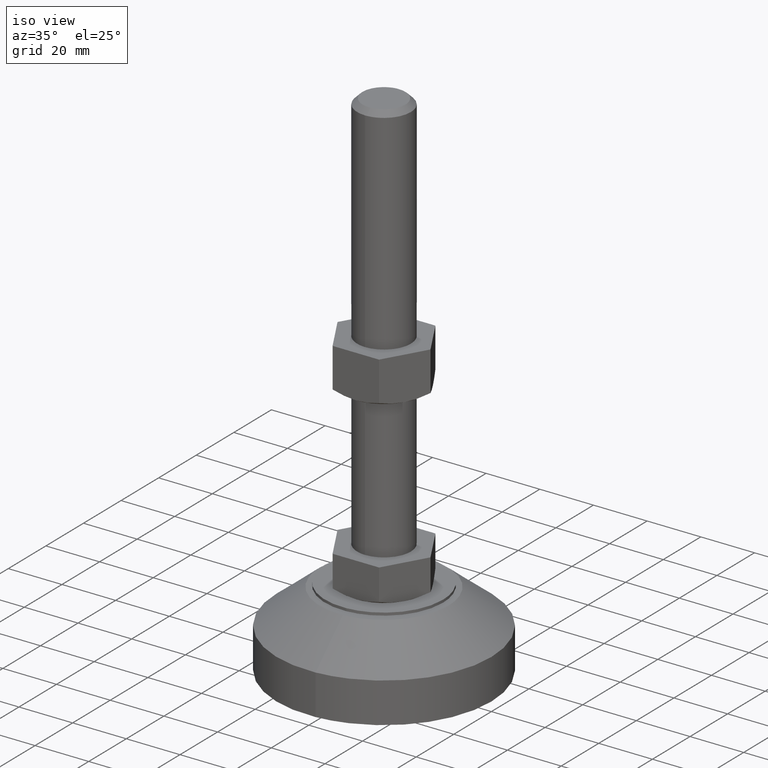
[diagram: clean part render]
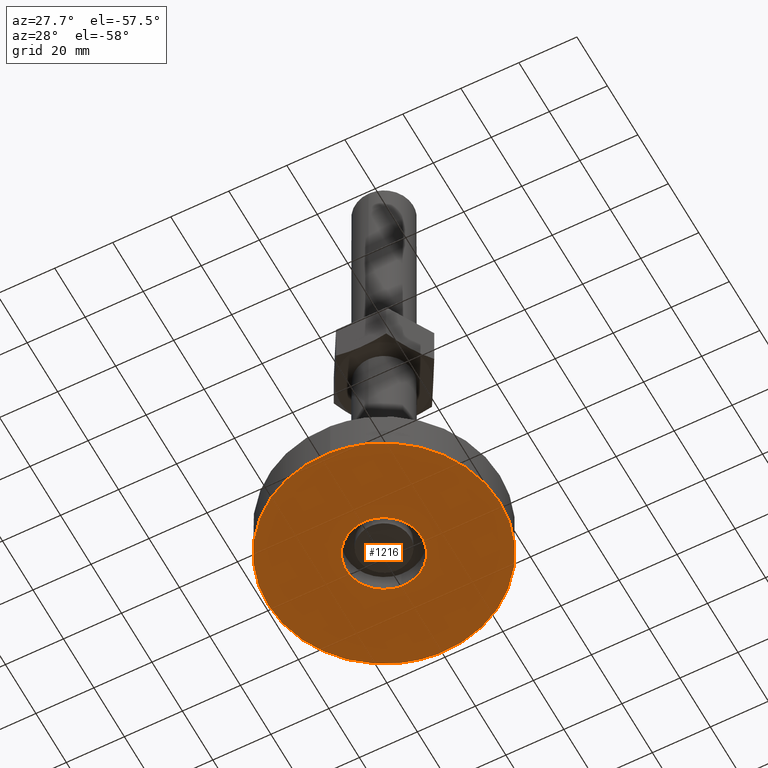
[diagram: tour spotlight — one face highlighted and labeled with its STEP entity id]
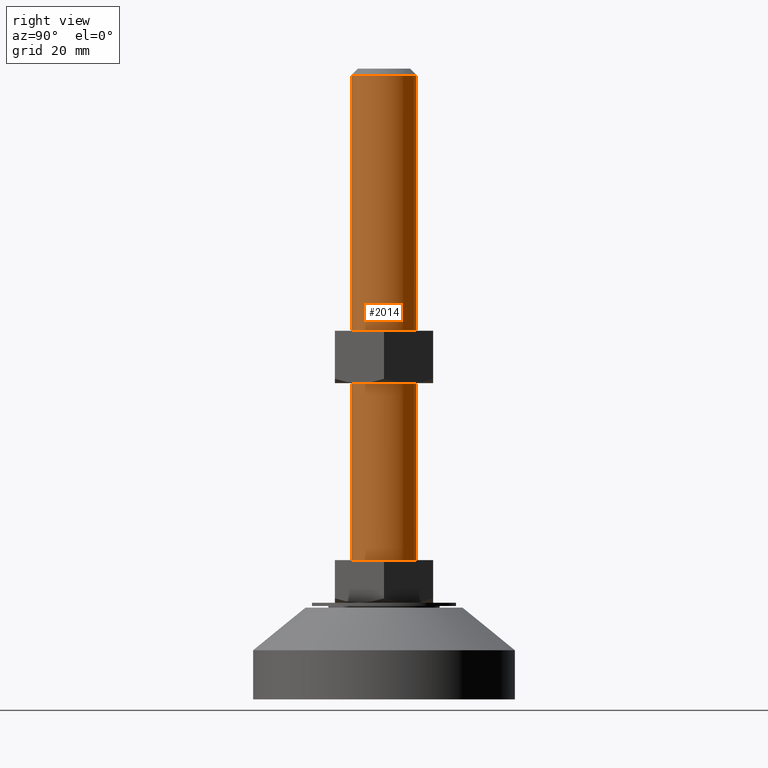
[diagram: tour spotlight — one face highlighted and labeled with its STEP entity id]
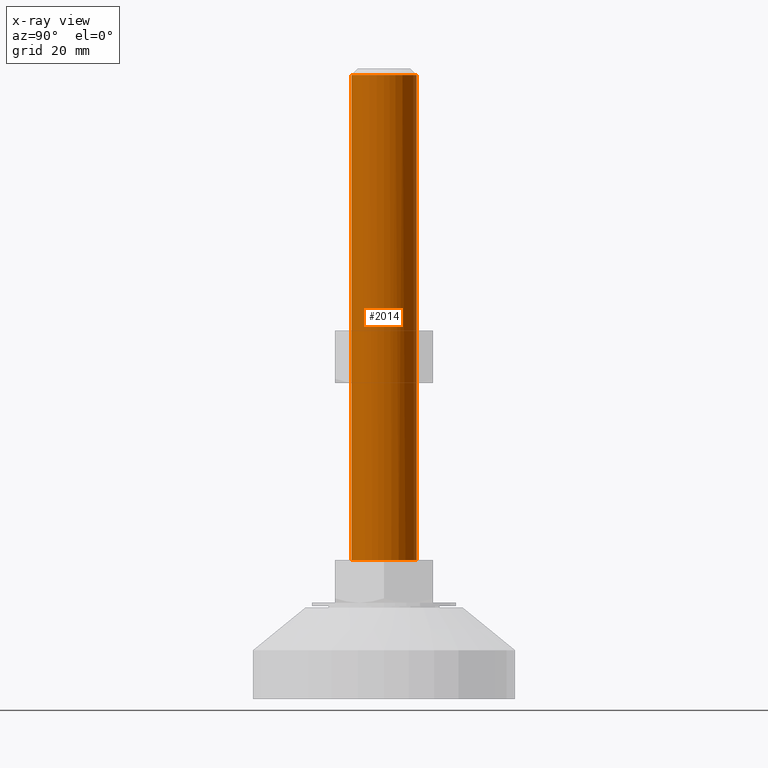
[diagram: x-ray of the same camera — body ghosted, this tour face saturated]
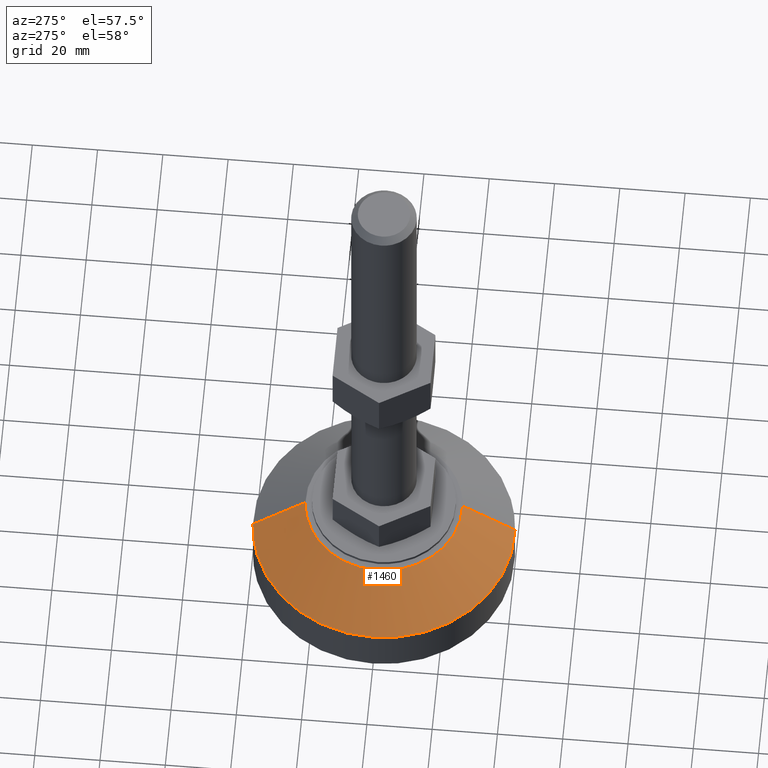
[diagram: tour spotlight — one face highlighted and labeled with its STEP entity id]
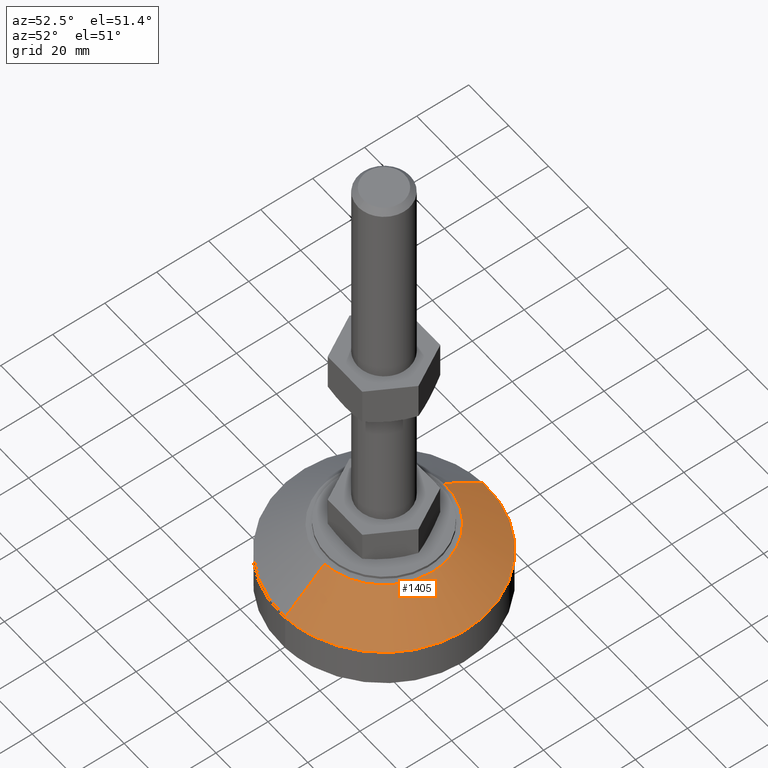
[diagram: tour spotlight — one face highlighted and labeled with its STEP entity id]
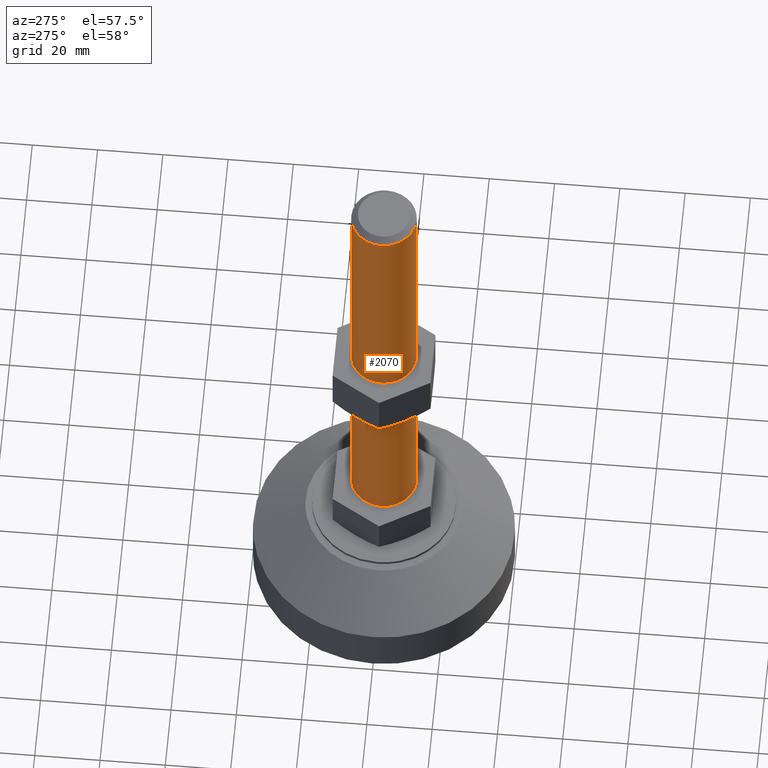
[diagram: tour spotlight — one face highlighted and labeled with its STEP entity id]
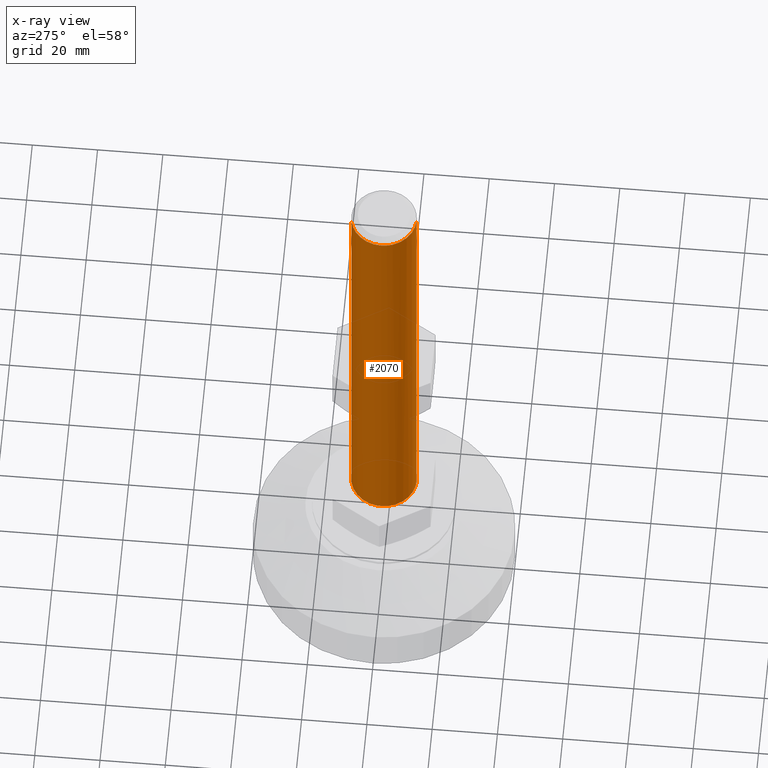
[diagram: x-ray of the same camera — body ghosted, this tour face saturated]
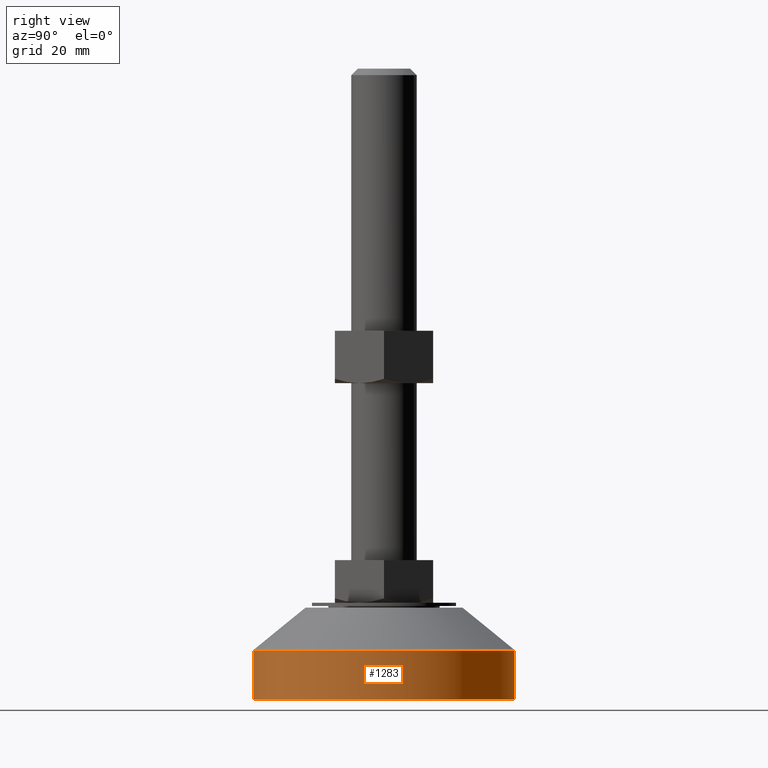
[diagram: tour spotlight — one face highlighted and labeled with its STEP entity id]
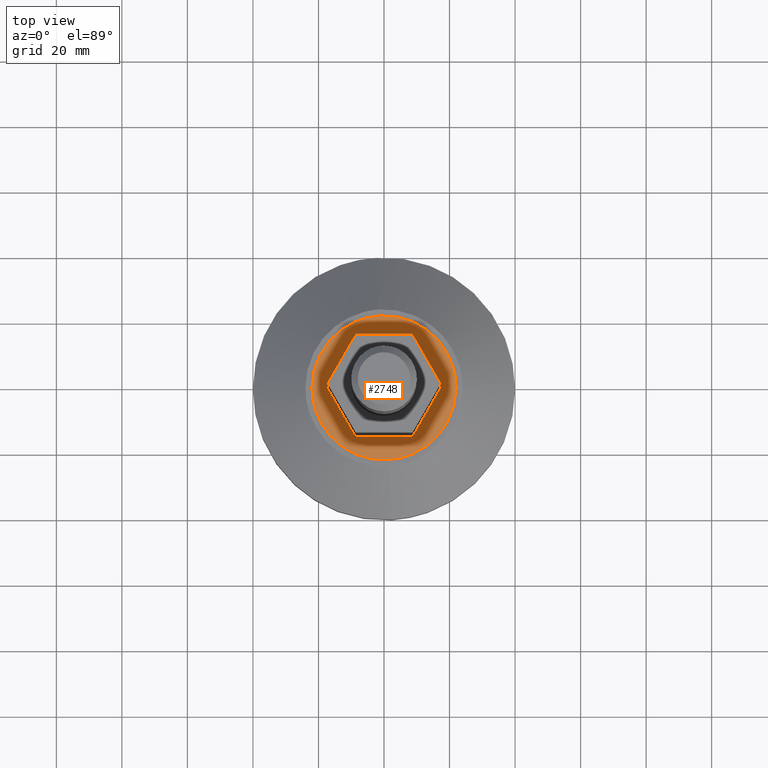
[diagram: tour spotlight — one face highlighted and labeled with its STEP entity id]
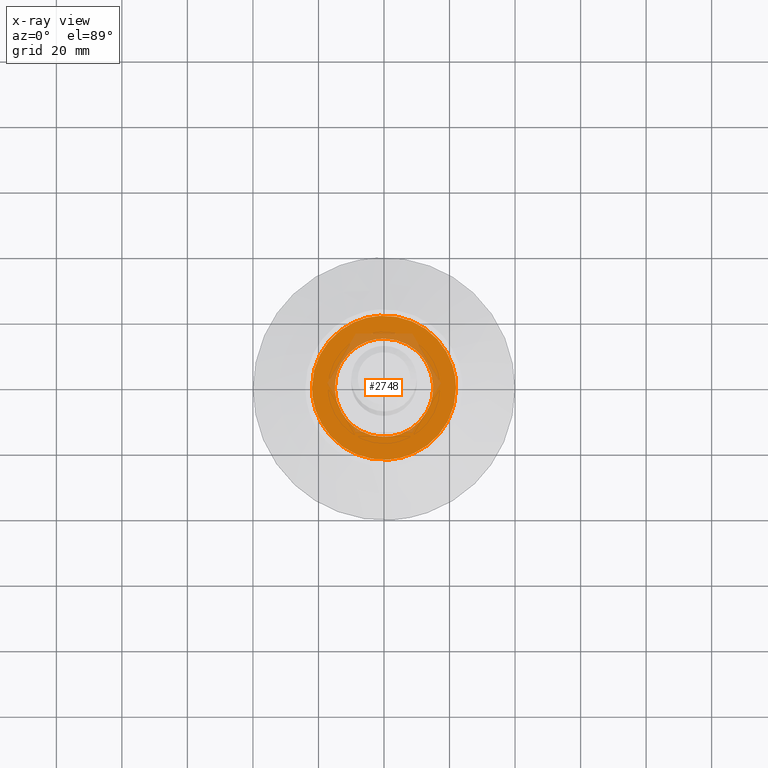
[diagram: x-ray of the same camera — body ghosted, this tour face saturated]
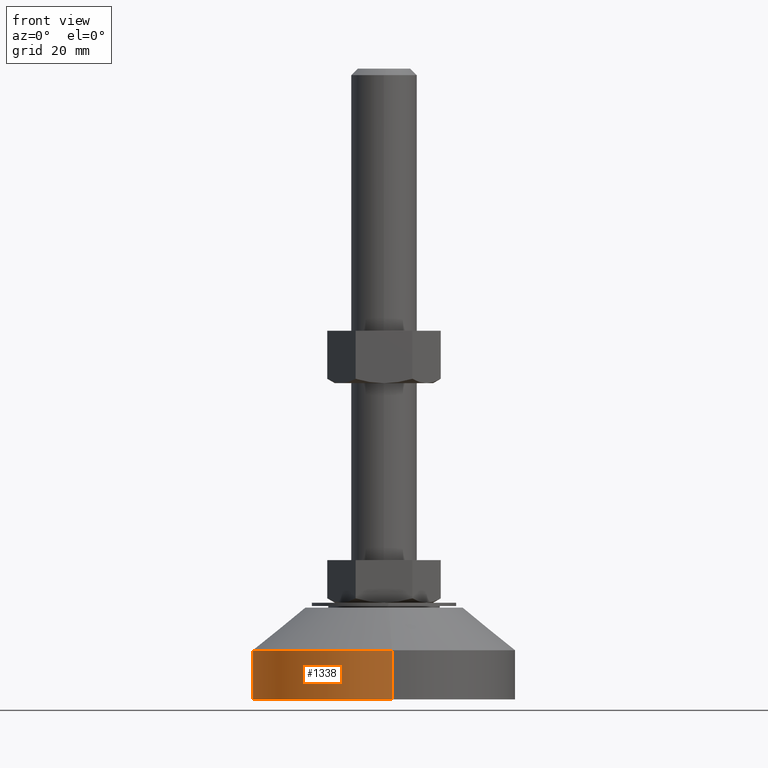
[diagram: tour spotlight — one face highlighted and labeled with its STEP entity id]
A machine part: a face-by-face anatomy tour. The part has 52 B-rep faces; the first image is the clean iso view, then the 8 largest visible faces are spotlighted one at a time (largest first), each with its STEP entity span.

Face 1 — auxiliary view, entity #1216. In plain terms, the highlighted face is a freeform B-spline surface patch.
Definition (entity closure, byte-faithful):
#1035=CARTESIAN_POINT('',(0.793631014250627,-12.975752379466220,3.469447E-016));
#1036=VERTEX_POINT('',#1035);
#1037=CARTESIAN_POINT('',(-13.000000000000330,-1.705303E-013,0.0));
#1038=VERTEX_POINT('',#1037);
#1039=CARTESIAN_POINT('',(0.793631014250628,-12.975752379466224,0.0));
#1040=CARTESIAN_POINT('',(0.397185923030654,-13.000000000000165,0.0));
#1041=CARTESIAN_POINT('',(-3.268497E-013,-13.000000000000171,0.0));
#1042=CARTESIAN_POINT('',(-13.000000000000325,-13.000000000000167,0.0));
#1043=CARTESIAN_POINT('',(-13.000000000000330,-1.705303E-013,0.0));
#1051=(BOUNDED_CURVE()B_SPLINE_CURVE(2,(#1039,#1040,#1041,#1042,#1043),.UNSPECIFIED.,.F.,.U.)B_SPLINE_CURVE_WITH_KNOTS((3,2,3),(0.239332962238008,0.250000000000000,0.500000000000000),.UNSPECIFIED.)CURVE()GEOMETRIC_REPRESENTATION_ITEM()RATIONAL_B_SPLINE_CURVE((0.976072041664714,0.987502787898742,1.0,0.707106781186547,1.0))REPRESENTATION_ITEM(''));
#1052=EDGE_CURVE('',#1036,#1038,#1051,.T.);
#1054=CARTESIAN_POINT('',(-0.793631014251280,12.975752379465879,3.469447E-016));
#1055=VERTEX_POINT('',#1054);
#1056=CARTESIAN_POINT('',(-13.000000000000330,-1.705303E-013,0.0));
#1057=CARTESIAN_POINT('',(-13.000000000000325,12.229178869492658,0.0));
#1058=CARTESIAN_POINT('',(-0.793631014251283,12.975752379465886,0.0));
#1066=(BOUNDED_CURVE()B_SPLINE_CURVE(2,(#1056,#1057,#1058),.UNSPECIFIED.,.F.,.U.)B_SPLINE_CURVE_WITH_KNOTS((3,3),(0.500000000000000,0.739332962238008),.UNSPECIFIED.)CURVE()GEOMETRIC_REPRESENTATION_ITEM()RATIONAL_B_SPLINE_CURVE((1.0,0.719603993287805,0.976072041664714))REPRESENTATION_ITEM(''));
#1067=EDGE_CURVE('',#1038,#1055,#1066,.T.);
#1102=CARTESIAN_POINT('',(12.999999999999670,-1.705303E-013,0.0));
#1103=VERTEX_POINT('',#1102);
#1104=CARTESIAN_POINT('',(12.999999999999670,-1.705303E-013,0.0));
#1105=CARTESIAN_POINT('',(12.999999999999673,-12.229178869492996,0.0));
#1106=CARTESIAN_POINT('',(0.793631014250628,-12.975752379466224,0.0));
#1114=(BOUNDED_CURVE()B_SPLINE_CURVE(2,(#1104,#1105,#1106),.UNSPECIFIED.,.F.,.U.)B_SPLINE_CURVE_WITH_KNOTS((3,3),(0.0,0.239332962238008),.UNSPECIFIED.)CURVE()GEOMETRIC_REPRESENTATION_ITEM()RATIONAL_B_SPLINE_CURVE((1.0,0.719603993287805,0.976072041664714))REPRESENTATION_ITEM(''));
#1115=EDGE_CURVE('',#1103,#1036,#1114,.T.);
#1121=CARTESIAN_POINT('',(-0.793631014251283,12.975752379465886,0.0));
#1122=CARTESIAN_POINT('',(-0.397185923031308,12.999999999999831,0.0));
#1123=CARTESIAN_POINT('',(-3.268497E-013,12.999999999999829,0.0));
#1124=CARTESIAN_POINT('',(12.999999999999675,12.999999999999829,0.0));
#1125=CARTESIAN_POINT('',(12.999999999999670,-1.705303E-013,0.0));
#1133=(BOUNDED_CURVE()B_SPLINE_CURVE(2,(#1121,#1122,#1123,#1124,#1125),.UNSPECIFIED.,.F.,.U.)B_SPLINE_CURVE_WITH_KNOTS((3,2,3),(0.739332962238008,0.750000000000000,1.0),.UNSPECIFIED.)CURVE()GEOMETRIC_REPRESENTATION_ITEM()RATIONAL_B_SPLINE_CURVE((0.976072041664714,0.987502787898742,1.0,0.707106781186547,1.0))REPRESENTATION_ITEM(''));
#1134=EDGE_CURVE('',#1055,#1103,#1133,.T.);
#1139=CARTESIAN_POINT('',(-43.995999844944457,-43.995015492367692,-4.263256E-014));
#1140=CARTESIAN_POINT('',(43.996001990711697,-43.995015492367692,-4.263256E-014));
#1141=CARTESIAN_POINT('',(-43.995999844944457,43.995014061856217,-4.263256E-014));
#1142=CARTESIAN_POINT('',(43.996001990711697,43.995014061856217,-4.263256E-014));
#1143=B_SPLINE_SURFACE_WITH_KNOTS('',1,1,((#1139,#1141),(#1140,#1142)),.UNSPECIFIED.,.F.,.F.,.U.,(2,2),(2,2),(0.0,87.992001835656168),(0.0,87.990029554223923),.UNSPECIFIED.);
#1144=CARTESIAN_POINT('',(-39.999999999999993,0.0,-8.526513E-014));
#1145=VERTEX_POINT('',#1144);
#1146=CARTESIAN_POINT('',(-2.441908785593018,39.925393942724767,-8.504308E-014));
#1147=VERTEX_POINT('',#1146);
#1148=CARTESIAN_POINT('',(-39.999999999999993,0.0,-8.526513E-014));
#1149=CARTESIAN_POINT('',(-39.999999999999581,37.628273642850907,-8.515411E-014));
#1150=CARTESIAN_POINT('',(-2.441908785593018,39.925393942724760,-8.504308E-014));
#1158=(BOUNDED_CURVE()B_SPLINE_CURVE(2,(#1148,#1149,#1150),.UNSPECIFIED.,.F.,.U.)B_SPLINE_CURVE_WITH_KNOTS((3,3),(0.0,0.239333103976603),.UNSPECIFIED.)CURVE()GEOMETRIC_REPRESENTATION_ITEM()RATIONAL_B_SPLINE_CURVE((1.0,0.719603827230713,0.976072345437691))REPRESENTATION_ITEM(''));
#1159=EDGE_CURVE('',#1145,#1147,#1158,.T.);
#1160=ORIENTED_EDGE('',*,*,#1159,.T.);
#1161=CARTESIAN_POINT('',(40.000000000000007,0.0,0.0));
#1162=VERTEX_POINT('',#1161);
#1163=CARTESIAN_POINT('',(-2.441908785593018,39.925393942724760,-8.504308E-014));
#1164=CARTESIAN_POINT('',(-1.222094088065021,39.999999999986727,-8.382098E-014));
#1165=CARTESIAN_POINT('',(8.140048E-013,39.999999999986933,-8.252185E-014));
#1166=CARTESIAN_POINT('',(40.000000000000391,39.999999999993655,-4.000031E-014));
#1167=CARTESIAN_POINT('',(40.000000000000007,0.0,0.0));
#1175=(BOUNDED_CURVE()B_SPLINE_CURVE(2,(#1163,#1164,#1165,#1166,#1167),.UNSPECIFIED.,.F.,.U.)B_SPLINE_CURVE_WITH_KNOTS((3,2,3),(0.239333103976603,0.250000000000000,0.500000000000000),.UNSPECIFIED.)CURVE()GEOMETRIC_REPRESENTATION_ITEM()RATIONAL_B_SPLINE_CURVE((0.976072345437691,0.987502953955835,1.0,0.707106781186548,1.0))REPRESENTATION_ITEM(''));
#1176=EDGE_CURVE('',#1147,#1162,#1175,.T.);
#1177=ORIENTED_EDGE('',*,*,#1176,.T.);
#1178=CARTESIAN_POINT('',(2.441908785593034,-39.925393942724767,-8.418266E-014));
#1179=VERTEX_POINT('',#1178);
#1180=CARTESIAN_POINT('',(40.000000000000007,0.0,0.0));
#1181=CARTESIAN_POINT('',(39.999999999999602,-37.628273642850914,-4.209133E-014));
#1182=CARTESIAN_POINT('',(2.441908785593034,-39.925393942724760,-8.418266E-014));
#1190=(BOUNDED_CURVE()B_SPLINE_CURVE(2,(#1180,#1181,#1182),.UNSPECIFIED.,.F.,.U.)B_SPLINE_CURVE_WITH_KNOTS((3,3),(0.500000000000000,0.739333103976603),.UNSPECIFIED.)CURVE()GEOMETRIC_REPRESENTATION_ITEM()RATIONAL_B_SPLINE_CURVE((1.0,0.719603827230713,0.976072345437691))REPRESENTATION_ITEM(''));
#1191=EDGE_CURVE('',#1162,#1179,#1190,.T.);
#1192=ORIENTED_EDGE('',*,*,#1191,.T.);
#1193=CARTESIAN_POINT('',(2.441908785593034,-39.925393942724760,-8.418266E-014));
#1194=CARTESIAN_POINT('',(1.222094088065040,-39.999999999986720,-8.419822E-014));
#1195=CARTESIAN_POINT('',(-7.911851E-013,-39.999999999986912,-8.421475E-014));
#1196=CARTESIAN_POINT('',(-40.000000000000377,-39.999999999993655,-8.475599E-014));
#1197=CARTESIAN_POINT('',(-39.999999999999993,0.0,-8.526513E-014));
#1205=(BOUNDED_CURVE()B_SPLINE_CURVE(2,(#1193,#1194,#1195,#1196,#1197),.UNSPECIFIED.,.F.,.U.)B_SPLINE_CURVE_WITH_KNOTS((3,2,3),(0.739333103976603,0.750000000000000,1.0),.UNSPECIFIED.)CURVE()GEOMETRIC_REPRESENTATION_ITEM()RATIONAL_B_SPLINE_CURVE((0.976072345437691,0.987502953955835,1.0,0.707106781186548,1.0))REPRESENTATION_ITEM(''));
#1206=EDGE_CURVE('',#1179,#1145,#1205,.T.);
#1207=ORIENTED_EDGE('',*,*,#1206,.T.);
#1208=EDGE_LOOP('',(#1160,#1177,#1192,#1207));
#1209=FACE_OUTER_BOUND('',#1208,.T.);
#1210=ORIENTED_EDGE('',*,*,#1067,.F.);
#1211=ORIENTED_EDGE('',*,*,#1052,.F.);
#1212=ORIENTED_EDGE('',*,*,#1115,.F.);
#1213=ORIENTED_EDGE('',*,*,#1134,.F.);
#1214=EDGE_LOOP('',(#1210,#1211,#1212,#1213));
#1215=FACE_BOUND('',#1214,.T.);
#1216=ADVANCED_FACE('',(#1209,#1215),#1143,.F.);

Face 2 — right view, entity #2014. An x-ray twin of the same camera follows (body ghosted, this face saturated) — the face is partly hidden behind the body. In plain terms, the highlighted face is a freeform B-spline surface patch.
Definition (entity closure, byte-faithful):
#1631=CARTESIAN_POINT('',(0.087265355703887,9.999619230646312,190.499999999979910));
#1632=VERTEX_POINT('',#1631);
#1647=CARTESIAN_POINT('',(0.610485395503521,-9.981347984231091,190.499999999979200));
#1648=VERTEX_POINT('',#1647);
#1654=CARTESIAN_POINT('',(10.000000000001631,0.0,190.500000000000000));
#1655=VERTEX_POINT('',#1654);
#1656=CARTESIAN_POINT('',(10.000000000001631,0.0,190.500000000000000));
#1657=CARTESIAN_POINT('',(10.000000000002254,-9.407060668923538,190.499999999989600));
#1658=CARTESIAN_POINT('',(0.610485395503521,-9.981347984231091,190.499999999979170));
#1666=(BOUNDED_CURVE()B_SPLINE_CURVE(2,(#1656,#1657,#1658),.UNSPECIFIED.,.F.,.U.)B_SPLINE_CURVE_WITH_KNOTS((3,3),(0.500000000000000,0.739332962239313),.UNSPECIFIED.)CURVE()GEOMETRIC_REPRESENTATION_ITEM()RATIONAL_B_SPLINE_CURVE((1.0,0.719603993286277,0.976072041667511))REPRESENTATION_ITEM(''));
#1667=EDGE_CURVE('',#1655,#1648,#1666,.T.);
#1669=CARTESIAN_POINT('',(0.087265355703887,9.999619230646312,190.499999999979960));
#1670=CARTESIAN_POINT('',(10.000000000001014,9.913112105240503,190.499999999990370));
#1671=CARTESIAN_POINT('',(10.000000000001631,0.0,190.500000000000000));
#1679=(BOUNDED_CURVE()B_SPLINE_CURVE(2,(#1669,#1670,#1671),.UNSPECIFIED.,.F.,.U.)B_SPLINE_CURVE_WITH_KNOTS((3,3),(0.251539894347695,0.500000000000000),.UNSPECIFIED.)CURVE()GEOMETRIC_REPRESENTATION_ITEM()RATIONAL_B_SPLINE_CURVE((0.996414028070997,0.708910879635063,1.0))REPRESENTATION_ITEM(''));
#1680=EDGE_CURVE('',#1632,#1655,#1679,.T.);
#1718=CARTESIAN_POINT('',(-0.087265355703859,-9.999619230646317,190.499999999979910));
#1719=VERTEX_POINT('',#1718);
#1733=CARTESIAN_POINT('',(0.610485395503521,-9.981347984231091,190.499999999979200));
#1734=CARTESIAN_POINT('',(0.378223333948905,-9.995555023853305,190.499999999979200));
#1735=CARTESIAN_POINT('',(0.145425531354023,-10.001650955245090,190.499999999979910));
#1736=CARTESIAN_POINT('',(-0.087265355703859,-9.999619230646317,190.499999999979910));
#1737=B_SPLINE_CURVE_WITH_KNOTS('',3,(#1733,#1734,#1735,#1736),.UNSPECIFIED.,.F.,.U.,(4,4),(0.000000024053164,0.698140560985690),.UNSPECIFIED.);
#1738=EDGE_CURVE('',#1648,#1719,#1737,.T.);
#1947=CARTESIAN_POINT('',(0.087265354983759,9.999619230642368,194.200000000000100));
#1948=CARTESIAN_POINT('',(10.086884585626127,9.912353875658626,194.200000000000070));
#1949=CARTESIAN_POINT('',(9.999619230642383,-0.087265354983745,194.200000000000100));
#1950=CARTESIAN_POINT('',(9.912353875658639,-10.086884585626112,194.200000000000070));
#1951=CARTESIAN_POINT('',(-0.087265354983730,-9.999619230642368,194.200000000000100));
#1952=CARTESIAN_POINT('',(0.087265354983759,9.999619230642368,38.707500000000010));
#1953=CARTESIAN_POINT('',(10.086884585626127,9.912353875658626,38.707500000000017));
#1954=CARTESIAN_POINT('',(9.999619230642383,-0.087265354983745,38.707500000000010));
#1955=CARTESIAN_POINT('',(9.912353875658639,-10.086884585626112,38.707500000000017));
#1956=CARTESIAN_POINT('',(-0.087265354983730,-9.999619230642368,38.707500000000010));
#1964=(BOUNDED_SURFACE()B_SPLINE_SURFACE(2,1,((#1947,#1952),(#1948,#1953),(#1949,#1954),(#1950,#1955),(#1951,#1956)),.UNSPECIFIED.,.F.,.F.,.U.)B_SPLINE_SURFACE_WITH_KNOTS((3,2,3),(2,2),(0.0,16.568542494924891,33.137084989849782),(0.0,155.492500000000010),.UNSPECIFIED.)GEOMETRIC_REPRESENTATION_ITEM()RATIONAL_B_SPLINE_SURFACE(((1.0,1.0),(0.707106781186548,0.707106781186548),(1.0,1.0),(0.707106781186548,0.707106781186548),(1.0,1.0)))REPRESENTATION_ITEM('')SURFACE());
#1965=ORIENTED_EDGE('',*,*,#1680,.T.);
#1966=ORIENTED_EDGE('',*,*,#1667,.T.);
#1967=ORIENTED_EDGE('',*,*,#1738,.T.);
#1968=CARTESIAN_POINT('',(-0.087265355432077,-9.999619230638457,42.500000000000000));
#1969=VERTEX_POINT('',#1968);
#1970=CARTESIAN_POINT('',(-0.087265355703859,-9.999619230646317,190.499999999979910));
#1971=CARTESIAN_POINT('',(-0.087265355432077,-9.999619230638457,42.500000000000000));
#1972=QUASI_UNIFORM_CURVE('',1,(#1970,#1971),.UNSPECIFIED.,.F.,.U.);
#1973=EDGE_CURVE('',#1719,#1969,#1972,.T.);
#1974=ORIENTED_EDGE('',*,*,#1973,.T.);
#1975=CARTESIAN_POINT('',(10.000000000000670,0.0,42.500000000000000));
#1976=VERTEX_POINT('',#1975);
#1977=CARTESIAN_POINT('',(-0.087265355432077,-9.999619230638459,42.500000000000000));
#1978=CARTESIAN_POINT('',(-0.043633508431190,-10.000000000000659,42.500000000000007));
#1979=CARTESIAN_POINT('',(1.421085E-014,-10.000000000000661,42.500000000000000));
#1980=CARTESIAN_POINT('',(10.000000000000673,-10.000000000000659,42.500000000000007));
#1981=CARTESIAN_POINT('',(10.000000000000670,0.0,42.500000000000000));
#1989=(BOUNDED_CURVE()B_SPLINE_CURVE(2,(#1977,#1978,#1979,#1980,#1981),.UNSPECIFIED.,.F.,.U.)B_SPLINE_CURVE_WITH_KNOTS((3,2,3),(0.748460105657115,0.750000000000000,1.0),.UNSPECIFIED.)CURVE()GEOMETRIC_REPRESENTATION_ITEM()RATIONAL_B_SPLINE_CURVE((0.996414028082129,0.998195901557119,1.0,0.707106781186547,1.0))REPRESENTATION_ITEM(''));
#1990=EDGE_CURVE('',#1969,#1976,#1989,.T.);
#1991=ORIENTED_EDGE('',*,*,#1990,.T.);
#1992=CARTESIAN_POINT('',(0.087265355432105,9.999619230638459,42.500000000000000));
#1993=VERTEX_POINT('',#1992);
#1994=CARTESIAN_POINT('',(10.000000000000670,0.0,42.500000000000000));
#1995=CARTESIAN_POINT('',(10.000000000000673,9.913112105505952,42.500000000000000));
#1996=CARTESIAN_POINT('',(0.087265355432105,9.999619230638459,42.500000000000000));
#2004=(BOUNDED_CURVE()B_SPLINE_CURVE(2,(#1994,#1995,#1996),.UNSPECIFIED.,.F.,.U.)B_SPLINE_CURVE_WITH_KNOTS((3,3),(0.0,0.248460105657115),.UNSPECIFIED.)CURVE()GEOMETRIC_REPRESENTATION_ITEM()RATIONAL_B_SPLINE_CURVE((1.0,0.708910879629428,0.996414028082129))REPRESENTATION_ITEM(''));
#2005=EDGE_CURVE('',#1976,#1993,#2004,.T.);
#2006=ORIENTED_EDGE('',*,*,#2005,.T.);
#2007=CARTESIAN_POINT('',(0.087265355703887,9.999619230646312,190.499999999979910));
#2008=CARTESIAN_POINT('',(0.087265355432105,9.999619230638459,42.500000000000000));
#2009=QUASI_UNIFORM_CURVE('',1,(#2007,#2008),.UNSPECIFIED.,.F.,.U.);
#2010=EDGE_CURVE('',#1632,#1993,#2009,.T.);
#2011=ORIENTED_EDGE('',*,*,#2010,.F.);
#2012=EDGE_LOOP('',(#1965,#1966,#1967,#1974,#1991,#2006,#2011));
#2013=FACE_OUTER_BOUND('',#2012,.T.);
#2014=ADVANCED_FACE('',(#2013),#1964,.T.);

Face 3 — auxiliary view, entity #1460. In plain terms, the highlighted face is a freeform B-spline surface patch.
Definition (entity closure, byte-faithful):
#1235=CARTESIAN_POINT('',(-2.441941581453171,39.925391936879301,14.999999999987580));
#1236=VERTEX_POINT('',#1235);
#1259=CARTESIAN_POINT('',(2.441941581453197,-39.925391936879286,14.999999999987580));
#1260=VERTEX_POINT('',#1259);
#1306=CARTESIAN_POINT('',(-39.999999999999993,0.0,15.0));
#1307=VERTEX_POINT('',#1306);
#1308=CARTESIAN_POINT('',(2.441941581453197,-39.925391936879294,14.999999999987587));
#1309=CARTESIAN_POINT('',(1.222110531945068,-40.000000000011589,14.999999999987750));
#1310=CARTESIAN_POINT('',(-5.616914E-011,-40.000000000011411,14.999999999987949));
#1311=CARTESIAN_POINT('',(-40.000000000027221,-40.000000000005528,14.999999999994154));
#1312=CARTESIAN_POINT('',(-39.999999999999993,0.0,15.0));
#1320=(BOUNDED_CURVE()B_SPLINE_CURVE(2,(#1308,#1309,#1310,#1311,#1312),.UNSPECIFIED.,.F.,.U.)B_SPLINE_CURVE_WITH_KNOTS((3,2,3),(0.739332962241464,0.750000000000000,1.0),.UNSPECIFIED.)CURVE()GEOMETRIC_REPRESENTATION_ITEM()RATIONAL_B_SPLINE_CURVE((0.976072041672120,0.987502787902790,1.0,0.707106781186548,1.0))REPRESENTATION_ITEM(''));
#1321=EDGE_CURVE('',#1260,#1307,#1320,.T.);
#1323=CARTESIAN_POINT('',(-39.999999999999993,0.0,15.0));
#1324=CARTESIAN_POINT('',(-39.999999999971045,37.628242676123392,14.999999999993792));
#1325=CARTESIAN_POINT('',(-2.441941581453171,39.925391936879301,14.999999999987587));
#1333=(BOUNDED_CURVE()B_SPLINE_CURVE(2,(#1323,#1324,#1325),.UNSPECIFIED.,.F.,.U.)B_SPLINE_CURVE_WITH_KNOTS((3,3),(0.0,0.239332962241464),.UNSPECIFIED.)CURVE()GEOMETRIC_REPRESENTATION_ITEM()RATIONAL_B_SPLINE_CURVE((1.0,0.719603993283757,0.976072041672120))REPRESENTATION_ITEM(''));
#1334=EDGE_CURVE('',#1307,#1236,#1333,.T.);
#1358=CARTESIAN_POINT('',(-1.465164948926170,23.955235162131348,27.999999999989960));
#1359=VERTEX_POINT('',#1358);
#1360=CARTESIAN_POINT('',(-1.465164948926170,23.955235162131348,27.999999999989960));
#1361=CARTESIAN_POINT('',(-2.441941581512077,39.925391936883933,14.999999999986720));
#1362=QUASI_UNIFORM_CURVE('',1,(#1360,#1361),.UNSPECIFIED.,.F.,.U.);
#1363=EDGE_CURVE('',#1359,#1236,#1362,.T.);
#1382=CARTESIAN_POINT('',(1.465164948926194,-23.955235162131348,27.999999999989960));
#1383=VERTEX_POINT('',#1382);
#1397=CARTESIAN_POINT('',(1.465164948926194,-23.955235162131348,27.999999999989960));
#1398=CARTESIAN_POINT('',(2.441941581512104,-39.925391936883933,14.999999999986720));
#1399=QUASI_UNIFORM_CURVE('',1,(#1397,#1398),.UNSPECIFIED.,.F.,.U.);
#1400=EDGE_CURVE('',#1383,#1260,#1399,.T.);
#1406=CARTESIAN_POINT('',(1.440745533022616,-23.555981242755681,28.324999999999999));
#1407=CARTESIAN_POINT('',(-22.115235709733064,-24.996726775778285,28.324999999999999));
#1408=CARTESIAN_POINT('',(-23.555981242755671,-1.440745533022602,28.324999999999999));
#1409=CARTESIAN_POINT('',(-24.996726775778267,22.115235709733078,28.324999999999999));
#1410=CARTESIAN_POINT('',(-1.440745533022588,23.555981242755681,28.324999999999999));
#1411=CARTESIAN_POINT('',(2.466971482603597,-40.334627204227829,14.666874999999999));
#1412=CARTESIAN_POINT('',(-37.867655721624232,-42.801598686831412,14.666874999999992));
#1413=CARTESIAN_POINT('',(-40.334627204227807,-2.466971482603583,14.666874999999999));
#1414=CARTESIAN_POINT('',(-42.801598686831397,37.867655721624246,14.666874999999992));
#1415=CARTESIAN_POINT('',(-2.466971482603568,40.334627204227829,14.666874999999999));
#1423=(BOUNDED_SURFACE()B_SPLINE_SURFACE(2,1,((#1406,#1411),(#1407,#1412),(#1408,#1413),(#1409,#1414),(#1410,#1415)),.UNSPECIFIED.,.F.,.F.,.U.)B_SPLINE_SURFACE_WITH_KNOTS((3,2,3),(2,2),(0.0,66.953480221987405,133.906960443974810),(0.0,21.659189239573220),.UNSPECIFIED.)GEOMETRIC_REPRESENTATION_ITEM()RATIONAL_B_SPLINE_SURFACE(((1.0,1.0),(0.707106781186548,0.707106781186548),(1.0,1.0),(0.707106781186548,0.707106781186548),(1.0,1.0)))REPRESENTATION_ITEM('')SURFACE());
#1424=ORIENTED_EDGE('',*,*,#1334,.F.);
#1425=ORIENTED_EDGE('',*,*,#1321,.F.);
#1426=ORIENTED_EDGE('',*,*,#1400,.F.);
#1427=CARTESIAN_POINT('',(-23.999999999999641,0.0,28.0));
#1428=VERTEX_POINT('',#1427);
#1429=CARTESIAN_POINT('',(1.465164948926194,-23.955235162131348,27.999999999989960));
#1430=CARTESIAN_POINT('',(0.733266319211441,-24.000000000011806,27.999999999990095));
#1431=CARTESIAN_POINT('',(7.390239E-013,-24.000000000011621,27.999999999990251));
#1432=CARTESIAN_POINT('',(-23.999999999999293,-24.000000000005443,27.999999999995275));
#1433=CARTESIAN_POINT('',(-23.999999999999641,0.0,28.0));
#1441=(BOUNDED_CURVE()B_SPLINE_CURVE(2,(#1429,#1430,#1431,#1432,#1433),.UNSPECIFIED.,.F.,.U.)B_SPLINE_CURVE_WITH_KNOTS((3,2,3),(0.739332962241328,0.750000000000000,1.0),.UNSPECIFIED.)CURVE()GEOMETRIC_REPRESENTATION_ITEM()RATIONAL_B_SPLINE_CURVE((0.976072041671830,0.987502787902632,1.0,0.707106781186548,1.0))REPRESENTATION_ITEM(''));
#1442=EDGE_CURVE('',#1383,#1428,#1441,.T.);
#1443=ORIENTED_EDGE('',*,*,#1442,.T.);
#1444=CARTESIAN_POINT('',(-23.999999999999641,0.0,28.0));
#1445=CARTESIAN_POINT('',(-24.000000000000014,22.576945605658583,27.999999999994980));
#1446=CARTESIAN_POINT('',(-1.465164948926170,23.955235162131348,27.999999999989960));
#1454=(BOUNDED_CURVE()B_SPLINE_CURVE(2,(#1444,#1445,#1446),.UNSPECIFIED.,.F.,.U.)B_SPLINE_CURVE_WITH_KNOTS((3,3),(0.0,0.239332962241328),.UNSPECIFIED.)CURVE()GEOMETRIC_REPRESENTATION_ITEM()RATIONAL_B_SPLINE_CURVE((1.0,0.719603993283916,0.976072041671830))REPRESENTATION_ITEM(''));
#1455=EDGE_CURVE('',#1428,#1359,#1454,.T.);
#1456=ORIENTED_EDGE('',*,*,#1455,.T.);
#1457=ORIENTED_EDGE('',*,*,#1363,.T.);
#1458=EDGE_LOOP('',(#1424,#1425,#1426,#1443,#1456,#1457));
#1459=FACE_OUTER_BOUND('',#1458,.T.);
#1460=ADVANCED_FACE('',(#1459),#1423,.T.);

Face 4 — auxiliary view, entity #1405. In plain terms, the highlighted face is a freeform B-spline surface patch.
Definition (entity closure, byte-faithful):
#1235=CARTESIAN_POINT('',(-2.441941581453171,39.925391936879301,14.999999999987580));
#1236=VERTEX_POINT('',#1235);
#1242=CARTESIAN_POINT('',(40.000000000000007,0.0,15.0));
#1243=VERTEX_POINT('',#1242);
#1244=CARTESIAN_POINT('',(-2.441941581453171,39.925391936879301,14.999999999987587));
#1245=CARTESIAN_POINT('',(-1.222110531945040,40.000000000011589,14.999999999987750));
#1246=CARTESIAN_POINT('',(5.620101E-011,40.000000000011418,14.999999999987949));
#1247=CARTESIAN_POINT('',(40.000000000027242,40.000000000005528,14.999999999994154));
#1248=CARTESIAN_POINT('',(40.000000000000007,0.0,15.0));
#1256=(BOUNDED_CURVE()B_SPLINE_CURVE(2,(#1244,#1245,#1246,#1247,#1248),.UNSPECIFIED.,.F.,.U.)B_SPLINE_CURVE_WITH_KNOTS((3,2,3),(0.239332962241464,0.250000000000000,0.500000000000000),.UNSPECIFIED.)CURVE()GEOMETRIC_REPRESENTATION_ITEM()RATIONAL_B_SPLINE_CURVE((0.976072041672120,0.987502787902790,1.0,0.707106781186548,1.0))REPRESENTATION_ITEM(''));
#1257=EDGE_CURVE('',#1236,#1243,#1256,.T.);
#1259=CARTESIAN_POINT('',(2.441941581453197,-39.925391936879286,14.999999999987580));
#1260=VERTEX_POINT('',#1259);
#1261=CARTESIAN_POINT('',(40.000000000000007,0.0,15.0));
#1262=CARTESIAN_POINT('',(39.999999999971045,-37.628242676123392,14.999999999993792));
#1263=CARTESIAN_POINT('',(2.441941581453197,-39.925391936879294,14.999999999987587));
#1271=(BOUNDED_CURVE()B_SPLINE_CURVE(2,(#1261,#1262,#1263),.UNSPECIFIED.,.F.,.U.)B_SPLINE_CURVE_WITH_KNOTS((3,3),(0.500000000000000,0.739332962241464),.UNSPECIFIED.)CURVE()GEOMETRIC_REPRESENTATION_ITEM()RATIONAL_B_SPLINE_CURVE((1.0,0.719603993283757,0.976072041672120))REPRESENTATION_ITEM(''));
#1272=EDGE_CURVE('',#1243,#1260,#1271,.T.);
#1339=CARTESIAN_POINT('',(-1.440745533022588,23.555981242755681,28.324999999999999));
#1340=CARTESIAN_POINT('',(22.115235709733092,24.996726775778285,28.324999999999999));
#1341=CARTESIAN_POINT('',(23.555981242755699,1.440745533022602,28.324999999999999));
#1342=CARTESIAN_POINT('',(24.996726775778299,-22.115235709733078,28.324999999999999));
#1343=CARTESIAN_POINT('',(1.440745533022616,-23.555981242755681,28.324999999999999));
#1344=CARTESIAN_POINT('',(-2.466971482603568,40.334627204227829,14.666874999999999));
#1345=CARTESIAN_POINT('',(37.867655721624253,42.801598686831412,14.666874999999992));
#1346=CARTESIAN_POINT('',(40.334627204227843,2.466971482603583,14.666874999999999));
#1347=CARTESIAN_POINT('',(42.801598686831426,-37.867655721624246,14.666874999999992));
#1348=CARTESIAN_POINT('',(2.466971482603597,-40.334627204227829,14.666874999999999));
#1356=(BOUNDED_SURFACE()B_SPLINE_SURFACE(2,1,((#1339,#1344),(#1340,#1345),(#1341,#1346),(#1342,#1347),(#1343,#1348)),.UNSPECIFIED.,.F.,.F.,.U.)B_SPLINE_SURFACE_WITH_KNOTS((3,2,3),(2,2),(0.0,66.953480221987405,133.906960443974810),(0.0,21.659189239573220),.UNSPECIFIED.)GEOMETRIC_REPRESENTATION_ITEM()RATIONAL_B_SPLINE_SURFACE(((1.0,1.0),(0.707106781186548,0.707106781186548),(1.0,1.0),(0.707106781186548,0.707106781186548),(1.0,1.0)))REPRESENTATION_ITEM('')SURFACE());
#1357=ORIENTED_EDGE('',*,*,#1257,.F.);
#1358=CARTESIAN_POINT('',(-1.465164948926170,23.955235162131348,27.999999999989960));
#1359=VERTEX_POINT('',#1358);
#1360=CARTESIAN_POINT('',(-1.465164948926170,23.955235162131348,27.999999999989960));
#1361=CARTESIAN_POINT('',(-2.441941581512077,39.925391936883933,14.999999999986720));
#1362=QUASI_UNIFORM_CURVE('',1,(#1360,#1361),.UNSPECIFIED.,.F.,.U.);
#1363=EDGE_CURVE('',#1359,#1236,#1362,.T.);
#1364=ORIENTED_EDGE('',*,*,#1363,.F.);
#1365=CARTESIAN_POINT('',(23.999999999999659,0.0,28.0));
#1366=VERTEX_POINT('',#1365);
#1367=CARTESIAN_POINT('',(-1.465164948926170,23.955235162131348,27.999999999989960));
#1368=CARTESIAN_POINT('',(-0.733266319211418,24.000000000011806,27.999999999990095));
#1369=CARTESIAN_POINT('',(-7.151269E-013,24.000000000011621,27.999999999990258));
#1370=CARTESIAN_POINT('',(23.999999999999318,24.000000000005443,27.999999999995275));
#1371=CARTESIAN_POINT('',(23.999999999999659,0.0,28.0));
#1379=(BOUNDED_CURVE()B_SPLINE_CURVE(2,(#1367,#1368,#1369,#1370,#1371),.UNSPECIFIED.,.F.,.U.)B_SPLINE_CURVE_WITH_KNOTS((3,2,3),(0.239332962241328,0.250000000000000,0.500000000000000),.UNSPECIFIED.)CURVE()GEOMETRIC_REPRESENTATION_ITEM()RATIONAL_B_SPLINE_CURVE((0.976072041671830,0.987502787902632,1.0,0.707106781186548,1.0))REPRESENTATION_ITEM(''));
#1380=EDGE_CURVE('',#1359,#1366,#1379,.T.);
#1381=ORIENTED_EDGE('',*,*,#1380,.T.);
#1382=CARTESIAN_POINT('',(1.465164948926194,-23.955235162131348,27.999999999989960));
#1383=VERTEX_POINT('',#1382);
#1384=CARTESIAN_POINT('',(23.999999999999659,0.0,28.0));
#1385=CARTESIAN_POINT('',(24.000000000000046,-22.576945605658583,27.999999999994980));
#1386=CARTESIAN_POINT('',(1.465164948926194,-23.955235162131348,27.999999999989960));
#1394=(BOUNDED_CURVE()B_SPLINE_CURVE(2,(#1384,#1385,#1386),.UNSPECIFIED.,.F.,.U.)B_SPLINE_CURVE_WITH_KNOTS((3,3),(0.500000000000000,0.739332962241328),.UNSPECIFIED.)CURVE()GEOMETRIC_REPRESENTATION_ITEM()RATIONAL_B_SPLINE_CURVE((1.0,0.719603993283916,0.976072041671830))REPRESENTATION_ITEM(''));
#1395=EDGE_CURVE('',#1366,#1383,#1394,.T.);
#1396=ORIENTED_EDGE('',*,*,#1395,.T.);
#1397=CARTESIAN_POINT('',(1.465164948926194,-23.955235162131348,27.999999999989960));
#1398=CARTESIAN_POINT('',(2.441941581512104,-39.925391936883933,14.999999999986720));
#1399=QUASI_UNIFORM_CURVE('',1,(#1397,#1398),.UNSPECIFIED.,.F.,.U.);
#1400=EDGE_CURVE('',#1383,#1260,#1399,.T.);
#1401=ORIENTED_EDGE('',*,*,#1400,.T.);
#1402=ORIENTED_EDGE('',*,*,#1272,.F.);
#1403=EDGE_LOOP('',(#1357,#1364,#1381,#1396,#1401,#1402));
#1404=FACE_OUTER_BOUND('',#1403,.T.);
#1405=ADVANCED_FACE('',(#1404),#1356,.T.);

Face 5 — auxiliary view, entity #2070. An x-ray twin of the same camera follows (body ghosted, this face saturated) — the face is partly hidden behind the body. In plain terms, the highlighted face is a freeform B-spline surface patch.
Definition (entity closure, byte-faithful):
#1629=CARTESIAN_POINT('',(-0.610485395503492,9.981347984231080,190.499999999979200));
#1630=VERTEX_POINT('',#1629);
#1631=CARTESIAN_POINT('',(0.087265355703887,9.999619230646312,190.499999999979910));
#1632=VERTEX_POINT('',#1631);
#1633=CARTESIAN_POINT('',(-0.610485395503492,9.981347984231080,190.499999999979200));
#1634=CARTESIAN_POINT('',(-0.378223333948876,9.995555023853306,190.499999999979390));
#1635=CARTESIAN_POINT('',(-0.145425531353994,10.001650955245079,190.499999999979910));
#1636=CARTESIAN_POINT('',(0.087265355703887,9.999619230646312,190.499999999979910));
#1637=B_SPLINE_CURVE_WITH_KNOTS('',3,(#1633,#1634,#1635,#1636),.UNSPECIFIED.,.F.,.U.,(4,4),(0.000000024053165,0.698140560985691),.UNSPECIFIED.);
#1638=EDGE_CURVE('',#1630,#1632,#1637,.T.);
#1703=CARTESIAN_POINT('',(-10.000000000001609,0.0,190.500000000000000));
#1704=VERTEX_POINT('',#1703);
#1705=CARTESIAN_POINT('',(-10.000000000001609,0.0,190.500000000000000));
#1706=CARTESIAN_POINT('',(-10.000000000002222,9.407060668923529,190.499999999989570));
#1707=CARTESIAN_POINT('',(-0.610485395503492,9.981347984231080,190.499999999979170));
#1715=(BOUNDED_CURVE()B_SPLINE_CURVE(2,(#1705,#1706,#1707),.UNSPECIFIED.,.F.,.U.)B_SPLINE_CURVE_WITH_KNOTS((3,3),(0.0,0.239332962239313),.UNSPECIFIED.)CURVE()GEOMETRIC_REPRESENTATION_ITEM()RATIONAL_B_SPLINE_CURVE((1.0,0.719603993286277,0.976072041667511))REPRESENTATION_ITEM(''));
#1716=EDGE_CURVE('',#1704,#1630,#1715,.T.);
#1718=CARTESIAN_POINT('',(-0.087265355703859,-9.999619230646317,190.499999999979910));
#1719=VERTEX_POINT('',#1718);
#1720=CARTESIAN_POINT('',(-0.087265355703859,-9.999619230646317,190.499999999979910));
#1721=CARTESIAN_POINT('',(-10.000000000000982,-9.913112105240501,190.499999999990190));
#1722=CARTESIAN_POINT('',(-10.000000000001609,0.0,190.500000000000000));
#1730=(BOUNDED_CURVE()B_SPLINE_CURVE(2,(#1720,#1721,#1722),.UNSPECIFIED.,.F.,.U.)B_SPLINE_CURVE_WITH_KNOTS((3,3),(0.751539894347695,1.0),.UNSPECIFIED.)CURVE()GEOMETRIC_REPRESENTATION_ITEM()RATIONAL_B_SPLINE_CURVE((0.996414028070997,0.708910879635063,1.0))REPRESENTATION_ITEM(''));
#1731=EDGE_CURVE('',#1719,#1704,#1730,.T.);
#1968=CARTESIAN_POINT('',(-0.087265355432077,-9.999619230638457,42.500000000000000));
#1969=VERTEX_POINT('',#1968);
#1970=CARTESIAN_POINT('',(-0.087265355703859,-9.999619230646317,190.499999999979910));
#1971=CARTESIAN_POINT('',(-0.087265355432077,-9.999619230638457,42.500000000000000));
#1972=QUASI_UNIFORM_CURVE('',1,(#1970,#1971),.UNSPECIFIED.,.F.,.U.);
#1973=EDGE_CURVE('',#1719,#1969,#1972,.T.);
#1992=CARTESIAN_POINT('',(0.087265355432105,9.999619230638459,42.500000000000000));
#1993=VERTEX_POINT('',#1992);
#2007=CARTESIAN_POINT('',(0.087265355703887,9.999619230646312,190.499999999979910));
#2008=CARTESIAN_POINT('',(0.087265355432105,9.999619230638459,42.500000000000000));
#2009=QUASI_UNIFORM_CURVE('',1,(#2007,#2008),.UNSPECIFIED.,.F.,.U.);
#2010=EDGE_CURVE('',#1632,#1993,#2009,.T.);
#2015=CARTESIAN_POINT('',(-0.087265354983730,-9.999619230642368,194.200000000000100));
#2016=CARTESIAN_POINT('',(-10.086884585626098,-9.912353875658626,194.200000000000070));
#2017=CARTESIAN_POINT('',(-9.999619230642354,0.087265354983745,194.200000000000100));
#2018=CARTESIAN_POINT('',(-9.912353875658610,10.086884585626112,194.200000000000070));
#2019=CARTESIAN_POINT('',(0.087265354983759,9.999619230642368,194.200000000000100));
#2020=CARTESIAN_POINT('',(-0.087265354983730,-9.999619230642368,38.707500000000010));
#2021=CARTESIAN_POINT('',(-10.086884585626098,-9.912353875658626,38.707500000000017));
#2022=CARTESIAN_POINT('',(-9.999619230642354,0.087265354983745,38.707500000000010));
#2023=CARTESIAN_POINT('',(-9.912353875658610,10.086884585626112,38.707500000000017));
#2024=CARTESIAN_POINT('',(0.087265354983759,9.999619230642368,38.707500000000010));
#2032=(BOUNDED_SURFACE()B_SPLINE_SURFACE(2,1,((#2015,#2020),(#2016,#2021),(#2017,#2022),(#2018,#2023),(#2019,#2024)),.UNSPECIFIED.,.F.,.F.,.U.)B_SPLINE_SURFACE_WITH_KNOTS((3,2,3),(2,2),(0.0,16.568542494924891,33.137084989849782),(0.0,155.492500000000010),.UNSPECIFIED.)GEOMETRIC_REPRESENTATION_ITEM()RATIONAL_B_SPLINE_SURFACE(((1.0,1.0),(0.707106781186548,0.707106781186548),(1.0,1.0),(0.707106781186548,0.707106781186548),(1.0,1.0)))REPRESENTATION_ITEM('')SURFACE());
#2033=ORIENTED_EDGE('',*,*,#1638,.T.);
#2034=ORIENTED_EDGE('',*,*,#2010,.T.);
#2035=CARTESIAN_POINT('',(-10.000000000000650,0.0,42.500000000000000));
#2036=VERTEX_POINT('',#2035);
#2037=CARTESIAN_POINT('',(0.087265355432105,9.999619230638459,42.500000000000000));
#2038=CARTESIAN_POINT('',(0.043633508431218,10.000000000000659,42.500000000000007));
#2039=CARTESIAN_POINT('',(1.421085E-014,10.000000000000661,42.500000000000000));
#2040=CARTESIAN_POINT('',(-10.000000000000645,10.000000000000659,42.500000000000007));
#2041=CARTESIAN_POINT('',(-10.000000000000650,0.0,42.500000000000000));
#2049=(BOUNDED_CURVE()B_SPLINE_CURVE(2,(#2037,#2038,#2039,#2040,#2041),.UNSPECIFIED.,.F.,.U.)B_SPLINE_CURVE_WITH_KNOTS((3,2,3),(0.248460105657115,0.250000000000000,0.500000000000000),.UNSPECIFIED.)CURVE()GEOMETRIC_REPRESENTATION_ITEM()RATIONAL_B_SPLINE_CURVE((0.996414028082129,0.998195901557119,1.0,0.707106781186547,1.0))REPRESENTATION_ITEM(''));
#2050=EDGE_CURVE('',#1993,#2036,#2049,.T.);
#2051=ORIENTED_EDGE('',*,*,#2050,.T.);
#2052=CARTESIAN_POINT('',(-10.000000000000650,0.0,42.500000000000000));
#2053=CARTESIAN_POINT('',(-10.000000000000643,-9.913112105505952,42.500000000000000));
#2054=CARTESIAN_POINT('',(-0.087265355432077,-9.999619230638459,42.500000000000000));
#2062=(BOUNDED_CURVE()B_SPLINE_CURVE(2,(#2052,#2053,#2054),.UNSPECIFIED.,.F.,.U.)B_SPLINE_CURVE_WITH_KNOTS((3,3),(0.500000000000000,0.748460105657115),.UNSPECIFIED.)CURVE()GEOMETRIC_REPRESENTATION_ITEM()RATIONAL_B_SPLINE_CURVE((1.0,0.708910879629428,0.996414028082129))REPRESENTATION_ITEM(''));
#2063=EDGE_CURVE('',#2036,#1969,#2062,.T.);
#2064=ORIENTED_EDGE('',*,*,#2063,.T.);
#2065=ORIENTED_EDGE('',*,*,#1973,.F.);
#2066=ORIENTED_EDGE('',*,*,#1731,.T.);
#2067=ORIENTED_EDGE('',*,*,#1716,.T.);
#2068=EDGE_LOOP('',(#2033,#2034,#2051,#2064,#2065,#2066,#2067));
#2069=FACE_OUTER_BOUND('',#2068,.T.);
#2070=ADVANCED_FACE('',(#2069),#2032,.T.);

Face 6 — right view, entity #1283. In plain terms, the highlighted face is a freeform B-spline surface patch.
Definition (entity closure, byte-faithful):
#1146=CARTESIAN_POINT('',(-2.441908785593018,39.925393942724767,-8.504308E-014));
#1147=VERTEX_POINT('',#1146);
#1161=CARTESIAN_POINT('',(40.000000000000007,0.0,0.0));
#1162=VERTEX_POINT('',#1161);
#1163=CARTESIAN_POINT('',(-2.441908785593018,39.925393942724760,-8.504308E-014));
#1164=CARTESIAN_POINT('',(-1.222094088065021,39.999999999986727,-8.382098E-014));
#1165=CARTESIAN_POINT('',(8.140048E-013,39.999999999986933,-8.252185E-014));
#1166=CARTESIAN_POINT('',(40.000000000000391,39.999999999993655,-4.000031E-014));
#1167=CARTESIAN_POINT('',(40.000000000000007,0.0,0.0));
#1175=(BOUNDED_CURVE()B_SPLINE_CURVE(2,(#1163,#1164,#1165,#1166,#1167),.UNSPECIFIED.,.F.,.U.)B_SPLINE_CURVE_WITH_KNOTS((3,2,3),(0.239333103976603,0.250000000000000,0.500000000000000),.UNSPECIFIED.)CURVE()GEOMETRIC_REPRESENTATION_ITEM()RATIONAL_B_SPLINE_CURVE((0.976072345437691,0.987502953955835,1.0,0.707106781186548,1.0))REPRESENTATION_ITEM(''));
#1176=EDGE_CURVE('',#1147,#1162,#1175,.T.);
#1178=CARTESIAN_POINT('',(2.441908785593034,-39.925393942724767,-8.418266E-014));
#1179=VERTEX_POINT('',#1178);
#1180=CARTESIAN_POINT('',(40.000000000000007,0.0,0.0));
#1181=CARTESIAN_POINT('',(39.999999999999602,-37.628273642850914,-4.209133E-014));
#1182=CARTESIAN_POINT('',(2.441908785593034,-39.925393942724760,-8.418266E-014));
#1190=(BOUNDED_CURVE()B_SPLINE_CURVE(2,(#1180,#1181,#1182),.UNSPECIFIED.,.F.,.U.)B_SPLINE_CURVE_WITH_KNOTS((3,3),(0.500000000000000,0.739333103976603),.UNSPECIFIED.)CURVE()GEOMETRIC_REPRESENTATION_ITEM()RATIONAL_B_SPLINE_CURVE((1.0,0.719603827230713,0.976072345437691))REPRESENTATION_ITEM(''));
#1191=EDGE_CURVE('',#1162,#1179,#1190,.T.);
#1217=CARTESIAN_POINT('',(-2.441941581394265,39.925391936874668,15.375000000000000));
#1218=CARTESIAN_POINT('',(37.483450355480407,42.367333518268957,15.375000000000002));
#1219=CARTESIAN_POINT('',(39.925391936874682,2.441941581394279,15.375000000000000));
#1220=CARTESIAN_POINT('',(42.367333518268971,-37.483450355480386,15.375000000000002));
#1221=CARTESIAN_POINT('',(2.441941581394294,-39.925391936874668,15.375000000000000));
#1222=CARTESIAN_POINT('',(-2.441941581394265,39.925391936874668,-0.384375000000087));
#1223=CARTESIAN_POINT('',(37.483450355480407,42.367333518268957,-0.384375000000087));
#1224=CARTESIAN_POINT('',(39.925391936874682,2.441941581394279,-0.384375000000087));
#1225=CARTESIAN_POINT('',(42.367333518268971,-37.483450355480386,-0.384375000000087));
#1226=CARTESIAN_POINT('',(2.441941581394294,-39.925391936874668,-0.384375000000087));
#1234=(BOUNDED_SURFACE()B_SPLINE_SURFACE(2,1,((#1217,#1222),(#1218,#1223),(#1219,#1224),(#1220,#1225),(#1221,#1226)),.UNSPECIFIED.,.F.,.F.,.U.)B_SPLINE_SURFACE_WITH_KNOTS((3,2,3),(2,2),(0.0,66.274169979695188,132.548339959390400),(0.0,15.759375000000089),.UNSPECIFIED.)GEOMETRIC_REPRESENTATION_ITEM()RATIONAL_B_SPLINE_SURFACE(((1.0,1.0),(0.707106781186548,0.707106781186548),(1.0,1.0),(0.707106781186548,0.707106781186548),(1.0,1.0)))REPRESENTATION_ITEM('')SURFACE());
#1235=CARTESIAN_POINT('',(-2.441941581453171,39.925391936879301,14.999999999987580));
#1236=VERTEX_POINT('',#1235);
#1237=CARTESIAN_POINT('',(-2.441941581453171,39.925391936879301,14.999999999987580));
#1238=CARTESIAN_POINT('',(-2.441908785593018,39.925393942724767,-8.504308E-014));
#1239=QUASI_UNIFORM_CURVE('',1,(#1237,#1238),.UNSPECIFIED.,.F.,.U.);
#1240=EDGE_CURVE('',#1236,#1147,#1239,.T.);
#1241=ORIENTED_EDGE('',*,*,#1240,.F.);
#1242=CARTESIAN_POINT('',(40.000000000000007,0.0,15.0));
#1243=VERTEX_POINT('',#1242);
#1244=CARTESIAN_POINT('',(-2.441941581453171,39.925391936879301,14.999999999987587));
#1245=CARTESIAN_POINT('',(-1.222110531945040,40.000000000011589,14.999999999987750));
#1246=CARTESIAN_POINT('',(5.620101E-011,40.000000000011418,14.999999999987949));
#1247=CARTESIAN_POINT('',(40.000000000027242,40.000000000005528,14.999999999994154));
#1248=CARTESIAN_POINT('',(40.000000000000007,0.0,15.0));
#1256=(BOUNDED_CURVE()B_SPLINE_CURVE(2,(#1244,#1245,#1246,#1247,#1248),.UNSPECIFIED.,.F.,.U.)B_SPLINE_CURVE_WITH_KNOTS((3,2,3),(0.239332962241464,0.250000000000000,0.500000000000000),.UNSPECIFIED.)CURVE()GEOMETRIC_REPRESENTATION_ITEM()RATIONAL_B_SPLINE_CURVE((0.976072041672120,0.987502787902790,1.0,0.707106781186548,1.0))REPRESENTATION_ITEM(''));
#1257=EDGE_CURVE('',#1236,#1243,#1256,.T.);
#1258=ORIENTED_EDGE('',*,*,#1257,.T.);
#1259=CARTESIAN_POINT('',(2.441941581453197,-39.925391936879286,14.999999999987580));
#1260=VERTEX_POINT('',#1259);
#1261=CARTESIAN_POINT('',(40.000000000000007,0.0,15.0));
#1262=CARTESIAN_POINT('',(39.999999999971045,-37.628242676123392,14.999999999993792));
#1263=CARTESIAN_POINT('',(2.441941581453197,-39.925391936879294,14.999999999987587));
#1271=(BOUNDED_CURVE()B_SPLINE_CURVE(2,(#1261,#1262,#1263),.UNSPECIFIED.,.F.,.U.)B_SPLINE_CURVE_WITH_KNOTS((3,3),(0.500000000000000,0.739332962241464),.UNSPECIFIED.)CURVE()GEOMETRIC_REPRESENTATION_ITEM()RATIONAL_B_SPLINE_CURVE((1.0,0.719603993283757,0.976072041672120))REPRESENTATION_ITEM(''));
#1272=EDGE_CURVE('',#1243,#1260,#1271,.T.);
#1273=ORIENTED_EDGE('',*,*,#1272,.T.);
#1274=CARTESIAN_POINT('',(2.441941581453197,-39.925391936879286,14.999999999987580));
#1275=CARTESIAN_POINT('',(2.441908785593034,-39.925393942724767,-8.418266E-014));
#1276=QUASI_UNIFORM_CURVE('',1,(#1274,#1275),.UNSPECIFIED.,.F.,.U.);
#1277=EDGE_CURVE('',#1260,#1179,#1276,.T.);
#1278=ORIENTED_EDGE('',*,*,#1277,.T.);
#1279=ORIENTED_EDGE('',*,*,#1191,.F.);
#1280=ORIENTED_EDGE('',*,*,#1176,.F.);
#1281=EDGE_LOOP('',(#1241,#1258,#1273,#1278,#1279,#1280));
#1282=FACE_OUTER_BOUND('',#1281,.T.);
#1283=ADVANCED_FACE('',(#1282),#1234,.T.);

Face 7 — top view, entity #2748. An x-ray twin of the same camera follows (body ghosted, this face saturated) — the face is partly hidden behind the body. In plain terms, the highlighted face is a freeform B-spline surface patch.
Definition (entity closure, byte-faithful):
#2090=CARTESIAN_POINT('',(-1.343037053362892,21.958967450049670,29.500000000000000));
#2091=VERTEX_POINT('',#2090);
#2097=CARTESIAN_POINT('',(22.000000000000011,0.0,29.500000000000000));
#2098=VERTEX_POINT('',#2097);
#2099=CARTESIAN_POINT('',(-1.343037053362892,21.958967450049673,29.500000000000004));
#2100=CARTESIAN_POINT('',(-0.672145341164222,21.999999999978680,29.500000000000000));
#2101=CARTESIAN_POINT('',(1.297932E-012,21.999999999979011,29.500000000000000));
#2102=CARTESIAN_POINT('',(22.000000000000639,21.999999999989825,29.499999999999996));
#2103=CARTESIAN_POINT('',(22.000000000000011,0.0,29.500000000000000));
#2111=(BOUNDED_CURVE()B_SPLINE_CURVE(2,(#2099,#2100,#2101,#2102,#2103),.UNSPECIFIED.,.F.,.U.)B_SPLINE_CURVE_WITH_KNOTS((3,2,3),(0.239333204387825,0.250000000000000,0.500000000000000),.UNSPECIFIED.)CURVE()GEOMETRIC_REPRESENTATION_ITEM()RATIONAL_B_SPLINE_CURVE((0.976072560638417,0.987503071594900,1.0,0.707106781186548,1.0))REPRESENTATION_ITEM(''));
#2112=EDGE_CURVE('',#2091,#2098,#2111,.T.);
#2114=CARTESIAN_POINT('',(1.343037053362918,-21.958967450049670,29.500000000000000));
#2115=VERTEX_POINT('',#2114);
#2116=CARTESIAN_POINT('',(22.000000000000011,0.0,29.500000000000000));
#2117=CARTESIAN_POINT('',(21.999999999999357,-20.695562569553964,29.499999999999993));
#2118=CARTESIAN_POINT('',(1.343037053362918,-21.958967450049673,29.500000000000004));
#2126=(BOUNDED_CURVE()B_SPLINE_CURVE(2,(#2116,#2117,#2118),.UNSPECIFIED.,.F.,.U.)B_SPLINE_CURVE_WITH_KNOTS((3,3),(0.500000000000000,0.739333204387825),.UNSPECIFIED.)CURVE()GEOMETRIC_REPRESENTATION_ITEM()RATIONAL_B_SPLINE_CURVE((1.0,0.719603709591648,0.976072560638417))REPRESENTATION_ITEM(''));
#2127=EDGE_CURVE('',#2098,#2115,#2126,.T.);
#2159=CARTESIAN_POINT('',(-21.999999999999989,0.0,29.500000000000000));
#2160=VERTEX_POINT('',#2159);
#2161=CARTESIAN_POINT('',(1.343037053362918,-21.958967450049673,29.500000000000004));
#2162=CARTESIAN_POINT('',(0.672145341164248,-21.999999999978680,29.500000000000000));
#2163=CARTESIAN_POINT('',(-1.272096E-012,-21.999999999979011,29.500000000000000));
#2164=CARTESIAN_POINT('',(-22.000000000000615,-21.999999999989825,29.499999999999996));
#2165=CARTESIAN_POINT('',(-21.999999999999989,0.0,29.500000000000000));
#2173=(BOUNDED_CURVE()B_SPLINE_CURVE(2,(#2161,#2162,#2163,#2164,#2165),.UNSPECIFIED.,.F.,.U.)B_SPLINE_CURVE_WITH_KNOTS((3,2,3),(0.739333204387825,0.750000000000000,1.0),.UNSPECIFIED.)CURVE()GEOMETRIC_REPRESENTATION_ITEM()RATIONAL_B_SPLINE_CURVE((0.976072560638417,0.987503071594900,1.0,0.707106781186548,1.0))REPRESENTATION_ITEM(''));
#2174=EDGE_CURVE('',#2115,#2160,#2173,.T.);
#2176=CARTESIAN_POINT('',(-21.999999999999989,0.0,29.500000000000000));
#2177=CARTESIAN_POINT('',(-21.999999999999329,20.695562569553964,29.499999999999993));
#2178=CARTESIAN_POINT('',(-1.343037053362892,21.958967450049673,29.500000000000004));
#2186=(BOUNDED_CURVE()B_SPLINE_CURVE(2,(#2176,#2177,#2178),.UNSPECIFIED.,.F.,.U.)B_SPLINE_CURVE_WITH_KNOTS((3,3),(0.0,0.239333204387825),.UNSPECIFIED.)CURVE()GEOMETRIC_REPRESENTATION_ITEM()RATIONAL_B_SPLINE_CURVE((1.0,0.719603709591648,0.976072560638417))REPRESENTATION_ITEM(''));
#2187=EDGE_CURVE('',#2160,#2091,#2186,.T.);
#2256=CARTESIAN_POINT('',(12.990381056766219,7.499999999999711,29.500000000000000));
#2257=VERTEX_POINT('',#2256);
#2309=CARTESIAN_POINT('',(1.421085E-014,15.0,29.500000000000000));
#2310=VERTEX_POINT('',#2309);
#2359=CARTESIAN_POINT('',(-12.990381056767021,7.500000000000309,29.500000000000000));
#2360=VERTEX_POINT('',#2359);
#2406=CARTESIAN_POINT('',(-12.990381056766960,-7.500000000000200,29.500000000000000));
#2407=VERTEX_POINT('',#2406);
#2453=CARTESIAN_POINT('',(1.421085E-014,-15.0,29.500000000000000));
#2454=VERTEX_POINT('',#2453);
#2501=CARTESIAN_POINT('',(12.990381056766060,-7.499999999999750,29.500000000000000));
#2502=VERTEX_POINT('',#2501);
#2553=CARTESIAN_POINT('',(1.421085E-014,15.0,29.500000000000000));
#2554=CARTESIAN_POINT('',(8.660254037865082,15.000000000035755,29.500000000000000));
#2555=CARTESIAN_POINT('',(12.990381056797590,7.500000000017822,29.500000000000000));
#2563=(BOUNDED_CURVE()B_SPLINE_CURVE(2,(#2553,#2554,#2555),.UNSPECIFIED.,.F.,.U.)CURVE()GEOMETRIC_REPRESENTATION_ITEM()QUASI_UNIFORM_CURVE()RATIONAL_B_SPLINE_CURVE((1.0,0.866025403784438,1.0))REPRESENTATION_ITEM(''));
#2564=EDGE_CURVE('',#2310,#2257,#2563,.T.);
#2585=CARTESIAN_POINT('',(-12.990381056767021,7.500000000000309,29.500000000000000));
#2586=CARTESIAN_POINT('',(-8.660254037864986,15.000000000035751,29.500000000000004));
#2587=CARTESIAN_POINT('',(1.421085E-014,15.000000000035749,29.500000000000000));
#2595=(BOUNDED_CURVE()B_SPLINE_CURVE(2,(#2585,#2586,#2587),.UNSPECIFIED.,.F.,.U.)CURVE()GEOMETRIC_REPRESENTATION_ITEM()QUASI_UNIFORM_CURVE()RATIONAL_B_SPLINE_CURVE((1.0,0.866025403784439,1.0))REPRESENTATION_ITEM(''));
#2596=EDGE_CURVE('',#2360,#2310,#2595,.T.);
#2616=CARTESIAN_POINT('',(-12.990381056766960,-7.500000000000200,29.500000000000000));
#2617=CARTESIAN_POINT('',(-17.320508075730050,3.556183E-014,29.500000000000000));
#2618=CARTESIAN_POINT('',(-12.990381056797510,7.500000000017909,29.500000000000000));
#2626=(BOUNDED_CURVE()B_SPLINE_CURVE(2,(#2616,#2617,#2618),.UNSPECIFIED.,.F.,.U.)CURVE()GEOMETRIC_REPRESENTATION_ITEM()QUASI_UNIFORM_CURVE()RATIONAL_B_SPLINE_CURVE((1.0,0.866025403784438,1.0))REPRESENTATION_ITEM(''));
#2627=EDGE_CURVE('',#2407,#2360,#2626,.T.);
#2648=CARTESIAN_POINT('',(1.421085E-014,-15.0,29.500000000000000));
#2649=CARTESIAN_POINT('',(-8.660254037865025,-15.000000000035755,29.499999999999996));
#2650=CARTESIAN_POINT('',(-12.990381056797540,-7.500000000017858,29.500000000000000));
#2658=(BOUNDED_CURVE()B_SPLINE_CURVE(2,(#2648,#2649,#2650),.UNSPECIFIED.,.F.,.U.)CURVE()GEOMETRIC_REPRESENTATION_ITEM()QUASI_UNIFORM_CURVE()RATIONAL_B_SPLINE_CURVE((1.0,0.866025403784438,1.0))REPRESENTATION_ITEM(''));
#2659=EDGE_CURVE('',#2454,#2407,#2658,.T.);
#2681=CARTESIAN_POINT('',(12.990381056766219,7.499999999999711,29.500000000000000));
#2682=CARTESIAN_POINT('',(17.320508075730064,-6.158268E-014,29.499999999999996));
#2683=CARTESIAN_POINT('',(12.990381056797530,-7.500000000017916,29.500000000000000));
#2691=(BOUNDED_CURVE()B_SPLINE_CURVE(2,(#2681,#2682,#2683),.UNSPECIFIED.,.F.,.U.)CURVE()GEOMETRIC_REPRESENTATION_ITEM()QUASI_UNIFORM_CURVE()RATIONAL_B_SPLINE_CURVE((1.0,0.866025403784439,1.0))REPRESENTATION_ITEM(''));
#2692=EDGE_CURVE('',#2257,#2502,#2691,.T.);
#2712=CARTESIAN_POINT('',(12.990381056766060,-7.499999999999750,29.500000000000000));
#2713=CARTESIAN_POINT('',(8.660254037865007,-15.000000000035749,29.500000000000000));
#2714=CARTESIAN_POINT('',(1.421085E-014,-15.000000000035749,29.500000000000000));
#2722=(BOUNDED_CURVE()B_SPLINE_CURVE(2,(#2712,#2713,#2714),.UNSPECIFIED.,.F.,.U.)CURVE()GEOMETRIC_REPRESENTATION_ITEM()QUASI_UNIFORM_CURVE()RATIONAL_B_SPLINE_CURVE((1.0,0.866025403784439,1.0))REPRESENTATION_ITEM(''));
#2723=EDGE_CURVE('',#2502,#2454,#2722,.T.);
#2729=CARTESIAN_POINT('',(24.197799914719479,-24.197258520802212,29.500000000000000));
#2730=CARTESIAN_POINT('',(-24.197801094891410,-24.197258520802212,29.500000000000000));
#2731=CARTESIAN_POINT('',(24.197799914719479,24.197257734020901,29.500000000000000));
#2732=CARTESIAN_POINT('',(-24.197801094891410,24.197257734020901,29.500000000000000));
#2733=B_SPLINE_SURFACE_WITH_KNOTS('',1,1,((#2729,#2731),(#2730,#2732)),.UNSPECIFIED.,.F.,.F.,.U.,(2,2),(2,2),(0.0,48.395601009610893),(0.0,48.394516254823117),.UNSPECIFIED.);
#2734=ORIENTED_EDGE('',*,*,#2174,.F.);
#2735=ORIENTED_EDGE('',*,*,#2127,.F.);
#2736=ORIENTED_EDGE('',*,*,#2112,.F.);
#2737=ORIENTED_EDGE('',*,*,#2187,.F.);
#2738=EDGE_LOOP('',(#2734,#2735,#2736,#2737));
#2739=FACE_OUTER_BOUND('',#2738,.T.);
#2740=ORIENTED_EDGE('',*,*,#2564,.T.);
#2741=ORIENTED_EDGE('',*,*,#2692,.T.);
#2742=ORIENTED_EDGE('',*,*,#2723,.T.);
#2743=ORIENTED_EDGE('',*,*,#2659,.T.);
#2744=ORIENTED_EDGE('',*,*,#2627,.T.);
#2745=ORIENTED_EDGE('',*,*,#2596,.T.);
#2746=EDGE_LOOP('',(#2740,#2741,#2742,#2743,#2744,#2745));
#2747=FACE_BOUND('',#2746,.T.);
#2748=ADVANCED_FACE('',(#2739,#2747),#2733,.F.);

Face 8 — front view, entity #1338. In plain terms, the highlighted face is a freeform B-spline surface patch.
Definition (entity closure, byte-faithful):
#1144=CARTESIAN_POINT('',(-39.999999999999993,0.0,-8.526513E-014));
#1145=VERTEX_POINT('',#1144);
#1146=CARTESIAN_POINT('',(-2.441908785593018,39.925393942724767,-8.504308E-014));
#1147=VERTEX_POINT('',#1146);
#1148=CARTESIAN_POINT('',(-39.999999999999993,0.0,-8.526513E-014));
#1149=CARTESIAN_POINT('',(-39.999999999999581,37.628273642850907,-8.515411E-014));
#1150=CARTESIAN_POINT('',(-2.441908785593018,39.925393942724760,-8.504308E-014));
#1158=(BOUNDED_CURVE()B_SPLINE_CURVE(2,(#1148,#1149,#1150),.UNSPECIFIED.,.F.,.U.)B_SPLINE_CURVE_WITH_KNOTS((3,3),(0.0,0.239333103976603),.UNSPECIFIED.)CURVE()GEOMETRIC_REPRESENTATION_ITEM()RATIONAL_B_SPLINE_CURVE((1.0,0.719603827230713,0.976072345437691))REPRESENTATION_ITEM(''));
#1159=EDGE_CURVE('',#1145,#1147,#1158,.T.);
#1178=CARTESIAN_POINT('',(2.441908785593034,-39.925393942724767,-8.418266E-014));
#1179=VERTEX_POINT('',#1178);
#1193=CARTESIAN_POINT('',(2.441908785593034,-39.925393942724760,-8.418266E-014));
#1194=CARTESIAN_POINT('',(1.222094088065040,-39.999999999986720,-8.419822E-014));
#1195=CARTESIAN_POINT('',(-7.911851E-013,-39.999999999986912,-8.421475E-014));
#1196=CARTESIAN_POINT('',(-40.000000000000377,-39.999999999993655,-8.475599E-014));
#1197=CARTESIAN_POINT('',(-39.999999999999993,0.0,-8.526513E-014));
#1205=(BOUNDED_CURVE()B_SPLINE_CURVE(2,(#1193,#1194,#1195,#1196,#1197),.UNSPECIFIED.,.F.,.U.)B_SPLINE_CURVE_WITH_KNOTS((3,2,3),(0.739333103976603,0.750000000000000,1.0),.UNSPECIFIED.)CURVE()GEOMETRIC_REPRESENTATION_ITEM()RATIONAL_B_SPLINE_CURVE((0.976072345437691,0.987502953955835,1.0,0.707106781186548,1.0))REPRESENTATION_ITEM(''));
#1206=EDGE_CURVE('',#1179,#1145,#1205,.T.);
#1235=CARTESIAN_POINT('',(-2.441941581453171,39.925391936879301,14.999999999987580));
#1236=VERTEX_POINT('',#1235);
#1237=CARTESIAN_POINT('',(-2.441941581453171,39.925391936879301,14.999999999987580));
#1238=CARTESIAN_POINT('',(-2.441908785593018,39.925393942724767,-8.504308E-014));
#1239=QUASI_UNIFORM_CURVE('',1,(#1237,#1238),.UNSPECIFIED.,.F.,.U.);
#1240=EDGE_CURVE('',#1236,#1147,#1239,.T.);
#1259=CARTESIAN_POINT('',(2.441941581453197,-39.925391936879286,14.999999999987580));
#1260=VERTEX_POINT('',#1259);
#1274=CARTESIAN_POINT('',(2.441941581453197,-39.925391936879286,14.999999999987580));
#1275=CARTESIAN_POINT('',(2.441908785593034,-39.925393942724767,-8.418266E-014));
#1276=QUASI_UNIFORM_CURVE('',1,(#1274,#1275),.UNSPECIFIED.,.F.,.U.);
#1277=EDGE_CURVE('',#1260,#1179,#1276,.T.);
#1284=CARTESIAN_POINT('',(2.441941581394294,-39.925391936874668,15.375000000000000));
#1285=CARTESIAN_POINT('',(-37.483450355480372,-42.367333518268957,15.375000000000002));
#1286=CARTESIAN_POINT('',(-39.925391936874647,-2.441941581394279,15.375000000000000));
#1287=CARTESIAN_POINT('',(-42.367333518268929,37.483450355480386,15.375000000000002));
#1288=CARTESIAN_POINT('',(-2.441941581394265,39.925391936874668,15.375000000000000));
#1289=CARTESIAN_POINT('',(2.441941581394294,-39.925391936874668,-0.384375000000087));
#1290=CARTESIAN_POINT('',(-37.483450355480372,-42.367333518268957,-0.384375000000087));
#1291=CARTESIAN_POINT('',(-39.925391936874647,-2.441941581394279,-0.384375000000087));
#1292=CARTESIAN_POINT('',(-42.367333518268929,37.483450355480386,-0.384375000000087));
#1293=CARTESIAN_POINT('',(-2.441941581394265,39.925391936874668,-0.384375000000087));
#1301=(BOUNDED_SURFACE()B_SPLINE_SURFACE(2,1,((#1284,#1289),(#1285,#1290),(#1286,#1291),(#1287,#1292),(#1288,#1293)),.UNSPECIFIED.,.F.,.F.,.U.)B_SPLINE_SURFACE_WITH_KNOTS((3,2,3),(2,2),(0.0,66.274169979695188,132.548339959390400),(0.0,15.759375000000089),.UNSPECIFIED.)GEOMETRIC_REPRESENTATION_ITEM()RATIONAL_B_SPLINE_SURFACE(((1.0,1.0),(0.707106781186548,0.707106781186548),(1.0,1.0),(0.707106781186548,0.707106781186548),(1.0,1.0)))REPRESENTATION_ITEM('')SURFACE());
#1302=ORIENTED_EDGE('',*,*,#1240,.T.);
#1303=ORIENTED_EDGE('',*,*,#1159,.F.);
#1304=ORIENTED_EDGE('',*,*,#1206,.F.);
#1305=ORIENTED_EDGE('',*,*,#1277,.F.);
#1306=CARTESIAN_POINT('',(-39.999999999999993,0.0,15.0));
#1307=VERTEX_POINT('',#1306);
#1308=CARTESIAN_POINT('',(2.441941581453197,-39.925391936879294,14.999999999987587));
#1309=CARTESIAN_POINT('',(1.222110531945068,-40.000000000011589,14.999999999987750));
#1310=CARTESIAN_POINT('',(-5.616914E-011,-40.000000000011411,14.999999999987949));
#1311=CARTESIAN_POINT('',(-40.000000000027221,-40.000000000005528,14.999999999994154));
#1312=CARTESIAN_POINT('',(-39.999999999999993,0.0,15.0));
#1320=(BOUNDED_CURVE()B_SPLINE_CURVE(2,(#1308,#1309,#1310,#1311,#1312),.UNSPECIFIED.,.F.,.U.)B_SPLINE_CURVE_WITH_KNOTS((3,2,3),(0.739332962241464,0.750000000000000,1.0),.UNSPECIFIED.)CURVE()GEOMETRIC_REPRESENTATION_ITEM()RATIONAL_B_SPLINE_CURVE((0.976072041672120,0.987502787902790,1.0,0.707106781186548,1.0))REPRESENTATION_ITEM(''));
#1321=EDGE_CURVE('',#1260,#1307,#1320,.T.);
#1322=ORIENTED_EDGE('',*,*,#1321,.T.);
#1323=CARTESIAN_POINT('',(-39.999999999999993,0.0,15.0));
#1324=CARTESIAN_POINT('',(-39.999999999971045,37.628242676123392,14.999999999993792));
#1325=CARTESIAN_POINT('',(-2.441941581453171,39.925391936879301,14.999999999987587));
#1333=(BOUNDED_CURVE()B_SPLINE_CURVE(2,(#1323,#1324,#1325),.UNSPECIFIED.,.F.,.U.)B_SPLINE_CURVE_WITH_KNOTS((3,3),(0.0,0.239332962241464),.UNSPECIFIED.)CURVE()GEOMETRIC_REPRESENTATION_ITEM()RATIONAL_B_SPLINE_CURVE((1.0,0.719603993283757,0.976072041672120))REPRESENTATION_ITEM(''));
#1334=EDGE_CURVE('',#1307,#1236,#1333,.T.);
#1335=ORIENTED_EDGE('',*,*,#1334,.T.);
#1336=EDGE_LOOP('',(#1302,#1303,#1304,#1305,#1322,#1335));
#1337=FACE_OUTER_BOUND('',#1336,.T.);
#1338=ADVANCED_FACE('',(#1337),#1301,.T.);